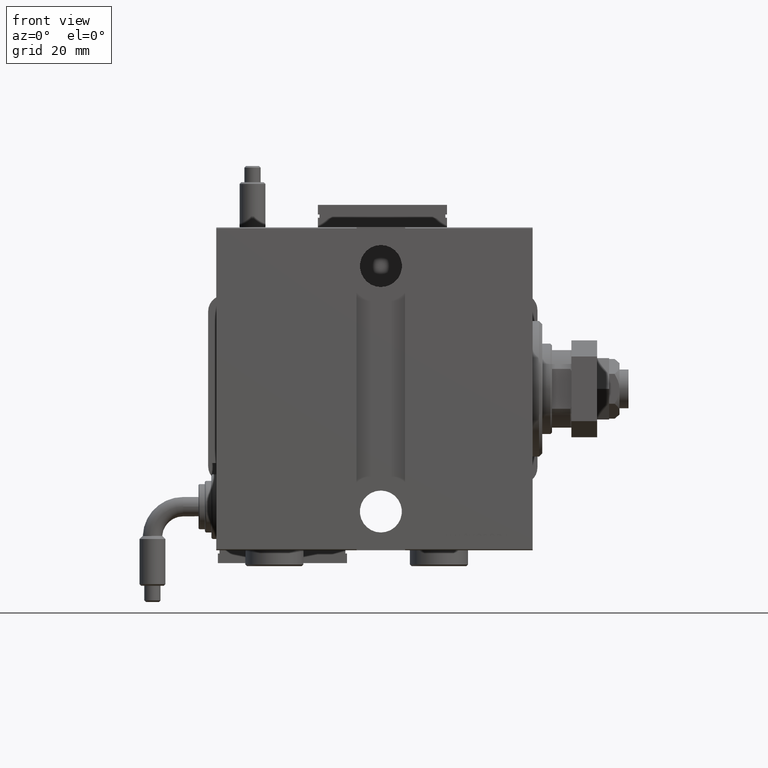
[diagram: clean part render]
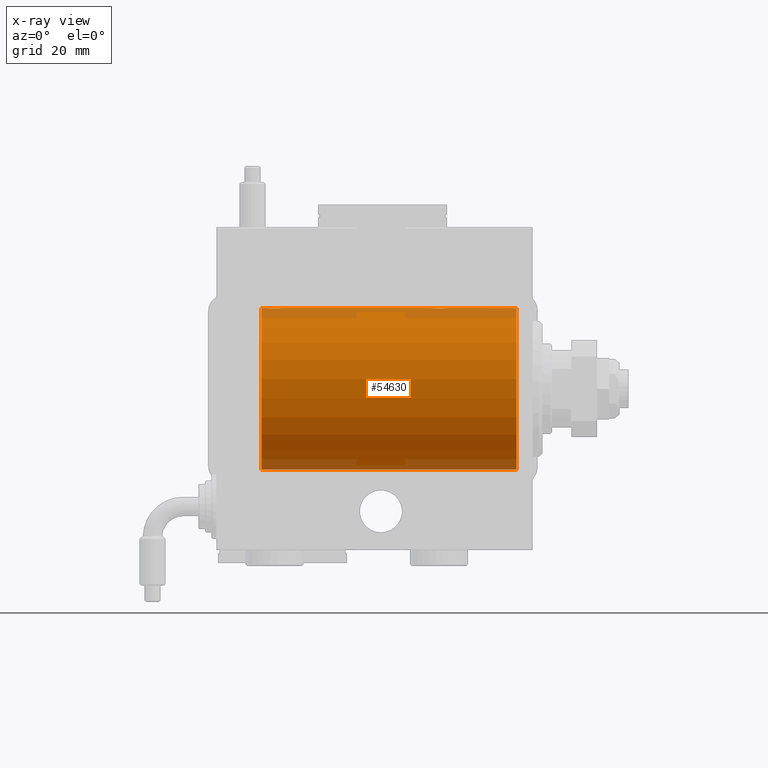
[diagram: x-ray — body ghosted, one internal face saturated and labeled with its STEP entity id]
A machine part, front view, then the same camera in x-ray: the body is ghosted and one INTERNAL B-rep face — a face not visible from any outside direction — is saturated and labeled: STEP entity #54630.
In plain terms, the highlighted cylindrical surface (partial cylindrical patch) has radius 25 mm, axis along (1, 0, -0).
Its self-contained STEP definition (entity closure, byte-faithful):
#462 = B_SPLINE_CURVE_WITH_KNOTS ( 'NONE', 3,
 ( #33683, #19076, #33378, #29623, #15032, #9764, #52603, #57848, #53221, #29311, #47324, #15336, #9457, #61272, #19699, #48250, #37724, #52310, #5734, #56636, #24659, #10694, #48563, #1076, #28703, #24345, #4808, #14119, #19387, #38948, #42668, #38032, #33059, #19994 ),
 .UNSPECIFIED., .F., .F.,
 ( 4, 2, 2, 2, 2, 2, 2, 2, 2, 2, 2, 2, 2, 2, 2, 2, 4 ),
 ( 2.712282590340838778E-18, 0.0004888140276038966661, 0.0009776280552077907301, 0.001466442082811684035, 0.001955256110415577123, 0.002444070138019470862, 0.002932884165623363733, 0.003421698193227256605, 0.003910512220831149910, 0.004399326248435042781, 0.004888140276038936520, 0.005376954303642829391, 0.005865768331246722263, 0.006354582358850615134, 0.006843396386454508006, 0.007332210414058401744, 0.007821024441662294616 ),
 .UNSPECIFIED. ) ;
#1076 = CARTESIAN_POINT ( 'NONE',  ( 78.47549655812819935, 1.988066470813636410, 24.92099187803979987 ) ) ;
#1841 = CYLINDRICAL_SURFACE ( 'NONE', #29033, 25.00000000000000000 ) ;
#1953 = CARTESIAN_POINT ( 'NONE',  ( 26.51635884985689984, 0.3289998300458025771, 24.99834914448731737 ) ) ;
#2252 = CARTESIAN_POINT ( 'NONE',  ( 29.32637449227344817, 2.484060984458440924, 24.87630362147114127 ) ) ;
#3308 = CARTESIAN_POINT ( 'NONE',  ( 31.24651678820870515, 1.109060198064595992, 24.97584694923138215 ) ) ;
#3612 = CARTESIAN_POINT ( 'NONE',  ( 30.88269712975891323, 1.652881481536637054, 24.94556728625771669 ) ) ;
#4808 = CARTESIAN_POINT ( 'NONE',  ( 78.01241165387911281, 1.525124164792365455, 24.95380474534677262 ) ) ;
#5386 = CARTESIAN_POINT ( 'NONE',  ( 31.48376868269157214, 0.3278008924763924359, 24.99836206720143394 ) ) ;
#5697 = CARTESIAN_POINT ( 'NONE',  ( 26.83138181747519369, 1.254434665533501247, 24.96887599906796140 ) ) ;
#5734 = CARTESIAN_POINT ( 'NONE',  ( 79.67198227724999526, 2.483775543901331151, 24.87633190989611265 ) ) ;
#5792 = CARTESIAN_POINT ( 'NONE',  ( 5.000000000000004441, 0.000000000000000000, 0.000000000000000000 ) ) ;
#6206 = LINE ( 'NONE', #30100, #26895 ) ;
#6299 = EDGE_CURVE ( 'NONE', #16211, #37839, #53326, .T. ) ;
#6300 = CARTESIAN_POINT ( 'NONE',  ( 30.10765995523902916, 2.247131495942866319, 24.89888190765473297 ) ) ;
#6918 = CARTESIAN_POINT ( 'NONE',  ( 29.16407969376738052, 2.499940606140134136, 24.87469189697262095 ) ) ;
#9425 = VERTEX_POINT ( 'NONE', #34185 ) ;
#9457 = CARTESIAN_POINT ( 'NONE',  ( 81.10765995523904337, 2.247131495942863211, 24.89888190765473652 ) ) ;
#9764 = CARTESIAN_POINT ( 'NONE',  ( 82.24651678820872291, 1.109060198064593328, 24.97584694923138215 ) ) ;
#10694 = CARTESIAN_POINT ( 'NONE',  ( 78.89254763180203156, 2.247309494740944213, 24.89886665287247780 ) ) ;
#10959 = CARTESIAN_POINT ( 'NONE',  ( 26.58033563915884656, 0.6495680347195832427, 24.99207398768919575 ) ) ;
#11448 = DIRECTION ( 'NONE',  ( 0.000000000000000000, 0.000000000000000000, 1.000000000000000000 ) ) ;
#11866 = CARTESIAN_POINT ( 'NONE',  ( 28.67198227724997395, 2.483775543901335592, 24.87633190989611265 ) ) ;
#13724 = EDGE_CURVE ( 'NONE', #16211, #17157, #32386, .T. ) ;
#14119 = CARTESIAN_POINT ( 'NONE',  ( 77.83138181747520434, 1.254434665533501914, 24.96887599906796495 ) ) ;
#15032 = CARTESIAN_POINT ( 'NONE',  ( 82.37206391457593213, 0.8063280894284519107, 24.98745245851526420 ) ) ;
#15336 = CARTESIAN_POINT ( 'NONE',  ( 81.25304113529938377, 2.169541443998010521, 24.90585268157805032 ) ) ;
#15506 = VECTOR ( 'NONE', #23040, 1000.000000000000000 ) ;
#15615 = CARTESIAN_POINT ( 'NONE',  ( 28.83773523386617654, 2.500059064463603153, 24.87467999146394959 ) ) ;
#16211 = VERTEX_POINT ( 'NONE', #17028 ) ;
#16522 = CARTESIAN_POINT ( 'NONE',  ( 27.89254763180204222, 2.247309494740949543, 24.89886665287248491 ) ) ;
#17028 = CARTESIAN_POINT ( 'NONE',  ( 84.00000000000000000, 0.000000000000000000, 25.00000000000000000 ) ) ;
#17157 = VERTEX_POINT ( 'NONE', #18876 ) ;
#18271 = EDGE_CURVE ( 'NONE', #34235, #33805, #35928, .T. ) ;
#18628 = B_SPLINE_CURVE_WITH_KNOTS ( 'NONE', 3,
 ( #60090, #28967, #5386, #57513, #36539, #3308, #27192, #46134, #3612, #22535, #39526, #58430, #6300, #43859, #25227, #2252, #6918, #15615, #11866, #34564, #21167, #16522, #24919, #48828, #53493, #53183, #49129, #5697, #44163, #34252, #10959, #1953, #29892, #44474 ),
 .UNSPECIFIED., .F., .F.,
 ( 4, 2, 2, 2, 2, 2, 2, 2, 2, 2, 2, 2, 2, 2, 2, 2, 4 ),
 ( 5.557925451109527434E-18, 0.0004888140276038975334, 0.0009776280552077896459, 0.001466442082811681216, 0.001955256110415572787, 0.002444070138019463923, 0.002932884165623355927, 0.003421698193227247064, 0.003910512220831138634, 0.004399326248435030638, 0.004888140276038921775, 0.005376954303642814646, 0.005865768331246706650, 0.006354582358850598654, 0.006843396386454489791, 0.007332210414058382662, 0.007821024441662273799 ),
 .UNSPECIFIED. ) ;
#18876 = CARTESIAN_POINT ( 'NONE',  ( 82.50000000000001421, 2.791216707898424283E-15, 25.00000000000000000 ) ) ;
#19076 = CARTESIAN_POINT ( 'NONE',  ( 82.50000000000001421, 0.1652919547268416056, 25.00000000000000355 ) ) ;
#19387 = CARTESIAN_POINT ( 'NONE',  ( 77.75307623591049833, 1.108237982093032370, 24.97588368351298627 ) ) ;
#19699 = CARTESIAN_POINT ( 'NONE',  ( 80.64916515999327373, 2.419847904056426025, 24.88263203448060779 ) ) ;
#19994 = CARTESIAN_POINT ( 'NONE',  ( 77.50000000000001421, -1.940163953345817485E-23, 25.00000000000000000 ) ) ;
#20363 = DIRECTION ( 'NONE',  ( -1.000000000000000000, 0.000000000000000000, 0.000000000000000000 ) ) ;
#21113 = EDGE_CURVE ( 'NONE', #45447, #32959, #6206, .T. ) ;
#21167 = CARTESIAN_POINT ( 'NONE',  ( 28.19536086700186317, 2.372637051600623881, 24.88723676875458324 ) ) ;
#22415 = EDGE_CURVE ( 'NONE', #17157, #34235, #462, .T. ) ;
#22535 = CARTESIAN_POINT ( 'NONE',  ( 30.65214997850824830, 1.883339088673197992, 24.92922739080161421 ) ) ;
#22785 = ORIENTED_EDGE ( 'NONE', *, *, #37801, .F. ) ;
#23040 = DIRECTION ( 'NONE',  ( -1.000000000000000000, -0.000000000000000000, -0.000000000000000000 ) ) ;
#23744 = VECTOR ( 'NONE', #32191, 1000.000000000000000 ) ;
#24303 = DIRECTION ( 'NONE',  ( -1.000000000000000000, 0.000000000000000000, 0.000000000000000000 ) ) ;
#24345 = CARTESIAN_POINT ( 'NONE',  ( 78.11576698070011560, 1.651337078997080043, 24.94567646296264485 ) ) ;
#24659 = CARTESIAN_POINT ( 'NONE',  ( 79.19536086700188093, 2.372637051600620328, 24.88723676875458324 ) ) ;
#24919 = CARTESIAN_POINT ( 'NONE',  ( 27.74628466518808168, 2.169035936979783585, 24.90589343070811168 ) ) ;
#25227 = CARTESIAN_POINT ( 'NONE',  ( 29.64916515999327018, 2.419847904056432686, 24.88263203448061134 ) ) ;
#25440 = DIRECTION ( 'NONE',  ( -1.000000000000000000, -0.000000000000000000, -0.000000000000000000 ) ) ;
#26701 = ORIENTED_EDGE ( 'NONE', *, *, #22415, .T. ) ;
#26895 = VECTOR ( 'NONE', #25440, 1000.000000000000000 ) ;
#27192 = CARTESIAN_POINT ( 'NONE',  ( 31.16970456409868362, 1.252624798282893304, 24.96896960740657789 ) ) ;
#27421 = AXIS2_PLACEMENT_3D ( 'NONE', #5792, #20363, #58222 ) ;
#28148 = CARTESIAN_POINT ( 'NONE',  ( 26.50000000000000355, -1.940558383798427991E-23, 25.00000000000000000 ) ) ;
#28703 = CARTESIAN_POINT ( 'NONE',  ( 78.34924793645207330, 1.884745564839651832, 24.92912799315484307 ) ) ;
#28967 = CARTESIAN_POINT ( 'NONE',  ( 31.49999999999999289, 0.1652919547268403844, 25.00000000000000000 ) ) ;
#29033 = AXIS2_PLACEMENT_3D ( 'NONE', #53374, #39709, #11448 ) ;
#29164 = ORIENTED_EDGE ( 'NONE', *, *, #38739, .T. ) ;
#29311 = CARTESIAN_POINT ( 'NONE',  ( 81.65214997850823408, 1.883339088673195327, 24.92922739080160355 ) ) ;
#29623 = CARTESIAN_POINT ( 'NONE',  ( 82.42019035479160038, 0.6474866336855787941, 24.99212517028518832 ) ) ;
#29892 = CARTESIAN_POINT ( 'NONE',  ( 26.50000000000000355, 0.1632133729155534341, 25.00000000000000355 ) ) ;
#30100 = CARTESIAN_POINT ( 'NONE',  ( 84.00000000000000000, 0.000000000000000000, 25.00000000000000000 ) ) ;
#32191 = DIRECTION ( 'NONE',  ( -1.000000000000000000, -0.000000000000000000, -0.000000000000000000 ) ) ;
#32282 = CARTESIAN_POINT ( 'NONE',  ( 31.50000000000000000, -3.363311788663921560E-15, 25.00000000000000000 ) ) ;
#32386 = LINE ( 'NONE', #37041, #15506 ) ;
#32504 = CARTESIAN_POINT ( 'NONE',  ( 84.00000000000000000, 3.061616997868382254E-15, -25.00000000000000000 ) ) ;
#32601 = ORIENTED_EDGE ( 'NONE', *, *, #21113, .T. ) ;
#32882 = CARTESIAN_POINT ( 'NONE',  ( 5.000000000000004441, 0.000000000000000000, 25.00000000000000000 ) ) ;
#32959 = VERTEX_POINT ( 'NONE', #32882 ) ;
#33059 = CARTESIAN_POINT ( 'NONE',  ( 77.50000000000000000, 0.1632133729155517687, 24.99999999999999645 ) ) ;
#33378 = CARTESIAN_POINT ( 'NONE',  ( 82.48376868269158990, 0.3278008924763897713, 24.99836206720143394 ) ) ;
#33683 = CARTESIAN_POINT ( 'NONE',  ( 82.50000000000001421, 2.791216707898424283E-15, 25.00000000000000000 ) ) ;
#33805 = VERTEX_POINT ( 'NONE', #32282 ) ;
#34185 = CARTESIAN_POINT ( 'NONE',  ( 5.000000000000004441, 3.061616997868382254E-15, -25.00000000000000000 ) ) ;
#34235 = VERTEX_POINT ( 'NONE', #47085 ) ;
#34252 = CARTESIAN_POINT ( 'NONE',  ( 26.62762890801418791, 0.8054273576766337595, 24.98748174524256171 ) ) ;
#34564 = CARTESIAN_POINT ( 'NONE',  ( 28.35125657267360566, 2.419890192637116133, 24.88262770889313202 ) ) ;
#35928 = LINE ( 'NONE', #55462, #23744 ) ;
#36539 = CARTESIAN_POINT ( 'NONE',  ( 31.37206391457592858, 0.8063280894284537981, 24.98745245851526064 ) ) ;
#37041 = CARTESIAN_POINT ( 'NONE',  ( 84.00000000000000000, 0.000000000000000000, 25.00000000000000000 ) ) ;
#37168 = DIRECTION ( 'NONE',  ( -1.000000000000000000, -0.000000000000000000, -0.000000000000000000 ) ) ;
#37640 = ORIENTED_EDGE ( 'NONE', *, *, #18271, .T. ) ;
#37724 = CARTESIAN_POINT ( 'NONE',  ( 80.16407969376739118, 2.499940606140130583, 24.87469189697261740 ) ) ;
#37801 = EDGE_CURVE ( 'NONE', #37839, #9425, #47071, .T. ) ;
#37839 = VERTEX_POINT ( 'NONE', #32504 ) ;
#37993 = CARTESIAN_POINT ( 'NONE',  ( 84.00000000000000000, 0.000000000000000000, 0.000000000000000000 ) ) ;
#38032 = CARTESIAN_POINT ( 'NONE',  ( 77.51635884985689984, 0.3289998300458005231, 24.99834914448731737 ) ) ;
#38739 = EDGE_CURVE ( 'NONE', #32959, #9425, #61114, .T. ) ;
#38948 = CARTESIAN_POINT ( 'NONE',  ( 77.62762890801420212, 0.8054273576766330933, 24.98748174524255106 ) ) ;
#39526 = CARTESIAN_POINT ( 'NONE',  ( 30.52633503512342017, 1.986787236855546368, 24.92109717386378520 ) ) ;
#39709 = DIRECTION ( 'NONE',  ( -1.000000000000000000, -0.000000000000000000, -0.000000000000000000 ) ) ;
#42668 = CARTESIAN_POINT ( 'NONE',  ( 77.58033563915887498, 0.6495680347195814663, 24.99207398768919219 ) ) ;
#43859 = CARTESIAN_POINT ( 'NONE',  ( 29.80683588887133340, 2.371819214216748239, 24.88731391344729360 ) ) ;
#44163 = CARTESIAN_POINT ( 'NONE',  ( 26.75307623591046635, 1.108237982093033258, 24.97588368351298627 ) ) ;
#44474 = CARTESIAN_POINT ( 'NONE',  ( 26.50000000000000355, -1.940558383798427991E-23, 25.00000000000000000 ) ) ;
#45218 = VECTOR ( 'NONE', #37168, 1000.000000000000000 ) ;
#45447 = VERTEX_POINT ( 'NONE', #28148 ) ;
#46134 = CARTESIAN_POINT ( 'NONE',  ( 30.98824666821940355, 1.524323445682836953, 24.95385641887459016 ) ) ;
#47071 = LINE ( 'NONE', #47992, #45218 ) ;
#47085 = CARTESIAN_POINT ( 'NONE',  ( 77.50000000000001421, -1.940163953345817485E-23, 25.00000000000000000 ) ) ;
#47324 = CARTESIAN_POINT ( 'NONE',  ( 81.52633503512342372, 1.986787236855545924, 24.92109717386377810 ) ) ;
#47589 = DIRECTION ( 'NONE',  ( 0.000000000000000000, 0.000000000000000000, 1.000000000000000000 ) ) ;
#47992 = CARTESIAN_POINT ( 'NONE',  ( 84.00000000000000000, 3.061616997868382254E-15, -25.00000000000000000 ) ) ;
#48250 = CARTESIAN_POINT ( 'NONE',  ( 80.32637449227345883, 2.484060984458436039, 24.87630362147113772 ) ) ;
#48563 = CARTESIAN_POINT ( 'NONE',  ( 78.74628466518808523, 2.169035936979781365, 24.90589343070811168 ) ) ;
#48828 = CARTESIAN_POINT ( 'NONE',  ( 27.47549655812821001, 1.988066470813638631, 24.92099187803980342 ) ) ;
#49129 = CARTESIAN_POINT ( 'NONE',  ( 27.01241165387908083, 1.525124164792365677, 24.95380474534677262 ) ) ;
#49381 = AXIS2_PLACEMENT_3D ( 'NONE', #37993, #24303, #47589 ) ;
#52281 = ORIENTED_EDGE ( 'NONE', *, *, #6299, .F. ) ;
#52310 = CARTESIAN_POINT ( 'NONE',  ( 79.83773523386616944, 2.500059064463600489, 24.87467999146394604 ) ) ;
#52603 = CARTESIAN_POINT ( 'NONE',  ( 82.16970456409872270, 1.252624798282892860, 24.96896960740658500 ) ) ;
#52980 = EDGE_LOOP ( 'NONE', ( #22785, #52281, #57799, #26701, #37640, #57292, #32601, #29164 ) ) ;
#53129 = EDGE_CURVE ( 'NONE', #33805, #45447, #18628, .T. ) ;
#53183 = CARTESIAN_POINT ( 'NONE',  ( 27.11576698070013336, 1.651337078997080710, 24.94567646296264840 ) ) ;
#53221 = CARTESIAN_POINT ( 'NONE',  ( 81.88269712975893810, 1.652881481536634167, 24.94556728625772024 ) ) ;
#53326 = CIRCLE ( 'NONE', #49381, 25.00000000000000000 ) ;
#53374 = CARTESIAN_POINT ( 'NONE',  ( 84.00000000000000000, 0.000000000000000000, 0.000000000000000000 ) ) ;
#53493 = CARTESIAN_POINT ( 'NONE',  ( 27.34924793645206975, 1.884745564839652721, 24.92912799315484662 ) ) ;
#53974 = FACE_OUTER_BOUND ( 'NONE', #52980, .T. ) ;
#54630 = ADVANCED_FACE ( 'NONE', ( #53974 ), #1841, .F. ) ;
#55462 = CARTESIAN_POINT ( 'NONE',  ( 84.00000000000000000, 0.000000000000000000, 25.00000000000000000 ) ) ;
#56636 = CARTESIAN_POINT ( 'NONE',  ( 79.35125657267359145, 2.419890192637109028, 24.88262770889313558 ) ) ;
#57292 = ORIENTED_EDGE ( 'NONE', *, *, #53129, .T. ) ;
#57513 = CARTESIAN_POINT ( 'NONE',  ( 31.42019035479160038, 0.6474866336855810145, 24.99212517028518832 ) ) ;
#57799 = ORIENTED_EDGE ( 'NONE', *, *, #13724, .T. ) ;
#57848 = CARTESIAN_POINT ( 'NONE',  ( 81.98824666821940355, 1.524323445682836509, 24.95385641887458661 ) ) ;
#58222 = DIRECTION ( 'NONE',  ( 0.000000000000000000, 0.000000000000000000, 1.000000000000000000 ) ) ;
#58430 = CARTESIAN_POINT ( 'NONE',  ( 30.25304113529935890, 2.169541443998010966, 24.90585268157805032 ) ) ;
#60090 = CARTESIAN_POINT ( 'NONE',  ( 31.50000000000000000, -3.363311788663921560E-15, 25.00000000000000000 ) ) ;
#61114 = CIRCLE ( 'NONE', #27421, 25.00000000000000000 ) ;
#61272 = CARTESIAN_POINT ( 'NONE',  ( 80.80683588887137603, 2.371819214216743799, 24.88731391344729360 ) ) ;